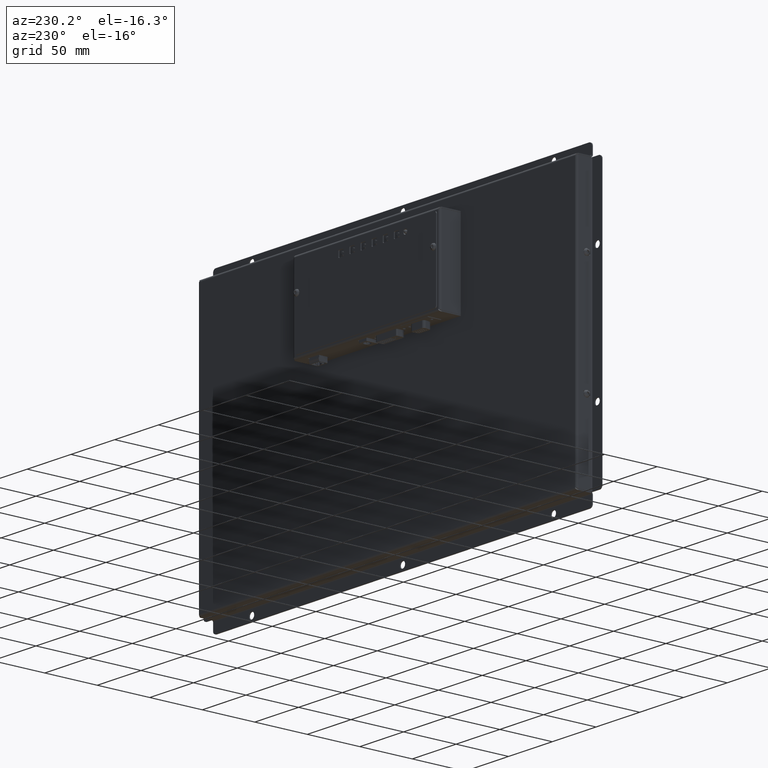
[diagram: clean part render]
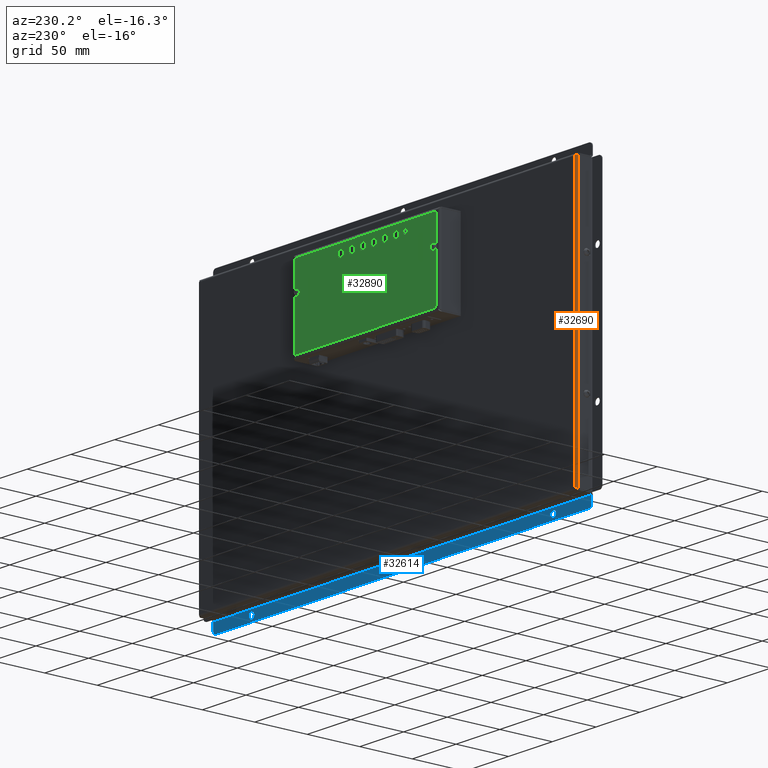
[diagram: same view with three faces highlighted in distinct colors, each labeled with its STEP entity id]
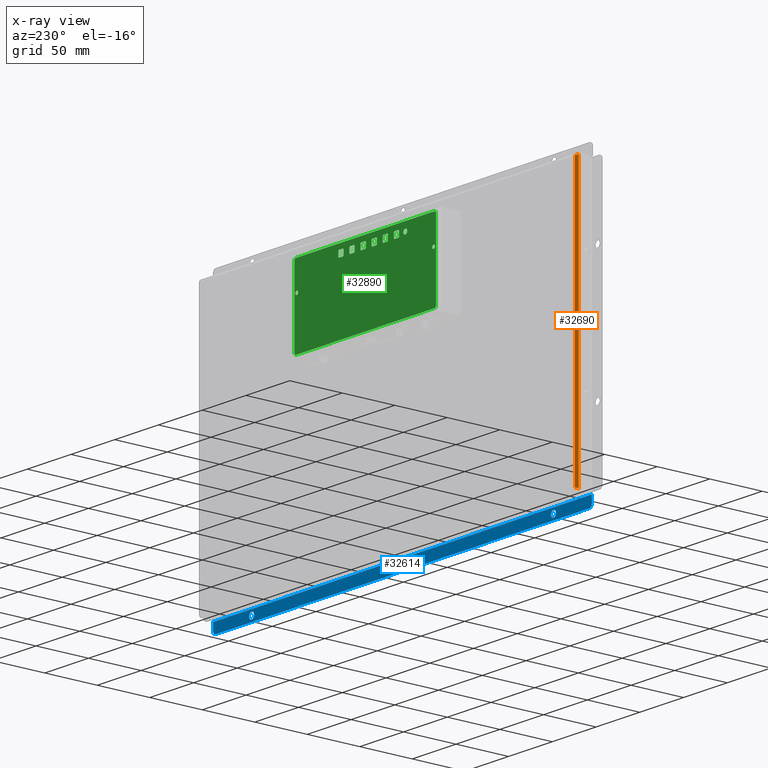
[diagram: x-ray of the same camera — body ghosted, the three highlighted faces saturated]
A machine part, auxiliary view with three faces highlighted in distinct colors.
The next image is the same camera in x-ray (body ghosted, the three faces saturated) — at least one of them is partly hidden behind the body in this view.
Their STEP definitions:

[orange] entity #32690 — the highlighted cylindrical surface (edge-blend (fillet) strip) has radius 2 mm, axis along (0, 0, 1).
#383=B_SPLINE_CURVE_WITH_KNOTS('',3,(#48125,#48126,#48127,#48128),
 .UNSPECIFIED.,.F.,.F.,(4,4),(-1.,-0.763258696678567),.UNSPECIFIED.);
#387=B_SPLINE_CURVE_WITH_KNOTS('',3,(#48224,#48225,#48226,#48227,#48228,
#48229,#48230),.UNSPECIFIED.,.F.,.F.,(4,3,4),(-0.763258696678567,-0.327110870012881,
0.),.UNSPECIFIED.);
#391=B_SPLINE_CURVE_WITH_KNOTS('',3,(#48285,#48286,#48287,#48288,#48289,
#48290,#48291),.UNSPECIFIED.,.F.,.F.,(4,3,4),(-0.763258696678557,-0.327110870012862,
0.),.UNSPECIFIED.);
#392=B_SPLINE_CURVE_WITH_KNOTS('',3,(#48335,#48336,#48337,#48338),
 .UNSPECIFIED.,.F.,.F.,(4,4),(-1.,-0.763258696678557),.UNSPECIFIED.);
#1092=CYLINDRICAL_SURFACE('',#35149,2.00000000000002);
#3060=FACE_OUTER_BOUND('',#4944,.T.);
#4944=EDGE_LOOP('',(#21790,#21791,#21792,#21793,#21794,#21795));
#7136=LINE('',#47946,#10232);
#7185=LINE('',#48526,#10281);
#10232=VECTOR('',#38757,10.);
#10281=VECTOR('',#38884,10.);
#13348=VERTEX_POINT('',#47943);
#13349=VERTEX_POINT('',#47945);
#13369=VERTEX_POINT('',#48025);
#13373=VERTEX_POINT('',#48108);
#13377=VERTEX_POINT('',#48233);
#13379=VERTEX_POINT('',#48271);
#16603=EDGE_CURVE('',#13348,#13349,#7136,.T.);
#16652=EDGE_CURVE('',#13349,#13373,#383,.T.);
#16659=EDGE_CURVE('',#13373,#13369,#387,.T.);
#16666=EDGE_CURVE('',#13379,#13377,#391,.T.);
#16669=EDGE_CURVE('',#13348,#13379,#392,.T.);
#16684=EDGE_CURVE('',#13369,#13377,#7185,.T.);
#21790=ORIENTED_EDGE('',*,*,#16603,.F.);
#21791=ORIENTED_EDGE('',*,*,#16669,.T.);
#21792=ORIENTED_EDGE('',*,*,#16666,.T.);
#21793=ORIENTED_EDGE('',*,*,#16684,.F.);
#21794=ORIENTED_EDGE('',*,*,#16659,.F.);
#21795=ORIENTED_EDGE('',*,*,#16652,.F.);
#32690=ADVANCED_FACE('',(#3060),#1092,.T.);
#35149=AXIS2_PLACEMENT_3D('',#48525,#38882,#38883);
#38757=DIRECTION('',(-1.24190424009659E-18,1.,6.69423997495131E-33));
#38882=DIRECTION('center_axis',(0.,-1.,0.));
#38883=DIRECTION('ref_axis',(0.,0.,-1.));
#38884=DIRECTION('',(0.,-1.,0.));
#47943=CARTESIAN_POINT('',(216.45,-127.45,1.99999999999999));
#47945=CARTESIAN_POINT('',(216.45,127.45,1.99999999999999));
#47946=CARTESIAN_POINT('',(216.45,4.99635134400043E-15,2.00000000000003));
#48025=CARTESIAN_POINT('',(214.45,126.55,-1.38777878078145E-16));
#48108=CARTESIAN_POINT('',(216.313297267953,127.236932826998,1.27327908298795));
#48125=CARTESIAN_POINT('Ctrl Pts',(216.45,127.45,1.99999999999998));
#48126=CARTESIAN_POINT('Ctrl Pts',(216.45,127.378977609005,1.75208508689468));
#48127=CARTESIAN_POINT('Ctrl Pts',(216.402177244262,127.30795521801,1.50393726846795));
#48128=CARTESIAN_POINT('Ctrl Pts',(216.312198719637,127.236932827013,1.27261268534075));
#48224=CARTESIAN_POINT('Ctrl Pts',(216.313297267955,127.236932827011,1.27327908298314));
#48225=CARTESIAN_POINT('Ctrl Pts',(216.147338578898,127.106088479012,0.8477644670254));
#48226=CARTESIAN_POINT('Ctrl Pts',(215.830183491866,126.975244131012,0.483087175164641));
#48227=CARTESIAN_POINT('Ctrl Pts',(215.433111320031,126.844399783011,0.258362880689913));
#48228=CARTESIAN_POINT('Ctrl Pts',(215.135307191142,126.746266522006,0.0898196598268512));
#48229=CARTESIAN_POINT('Ctrl Pts',(214.792549702048,126.648133261,-1.38745287476207E-14));
#48230=CARTESIAN_POINT('Ctrl Pts',(214.45,126.55,-1.77635683940025E-14));
#48233=CARTESIAN_POINT('',(214.45,-126.55,-1.38777878078145E-16));
#48271=CARTESIAN_POINT('',(216.313297267953,-127.236932826998,1.27327908298791));
#48285=CARTESIAN_POINT('Ctrl Pts',(216.313297267955,-127.236932827011,1.27327908298313));
#48286=CARTESIAN_POINT('Ctrl Pts',(216.147338578898,-127.106088479011,0.847764467025421));
#48287=CARTESIAN_POINT('Ctrl Pts',(215.830183491866,-126.975244131011,0.483087175164606));
#48288=CARTESIAN_POINT('Ctrl Pts',(215.433111320031,-126.844399783011,0.258362880689876));
#48289=CARTESIAN_POINT('Ctrl Pts',(215.135307191142,-126.746266522007,0.0898196598268266));
#48290=CARTESIAN_POINT('Ctrl Pts',(214.792549702048,-126.648133261003,-7.94498263796849E-15));
#48291=CARTESIAN_POINT('Ctrl Pts',(214.45,-126.55,-1.76247905159241E-14));
#48335=CARTESIAN_POINT('Ctrl Pts',(216.45,-127.45,1.99999999999999));
#48336=CARTESIAN_POINT('Ctrl Pts',(216.45,-127.378977609003,1.75208508689462));
#48337=CARTESIAN_POINT('Ctrl Pts',(216.402177244262,-127.307955218007,1.50393726846788));
#48338=CARTESIAN_POINT('Ctrl Pts',(216.312198719637,-127.236932827011,1.27261268534068));
#48525=CARTESIAN_POINT('Origin',(214.45,0.,2.));
#48526=CARTESIAN_POINT('',(214.45,63.2750000000001,0.));

[blue] entity #32614 — the highlighted planar face has unit normal (-0, 1, -0).
#727=FACE_BOUND('',#4841,.T.);
#728=FACE_BOUND('',#4842,.T.);
#729=FACE_BOUND('',#4843,.T.);
#1611=CIRCLE('',#35031,3.);
#1615=CIRCLE('',#35037,3.);
#1623=CIRCLE('',#35049,3.);
#1626=CIRCLE('',#35053,3.);
#1627=CIRCLE('',#35056,3.);
#2984=FACE_OUTER_BOUND('',#4840,.T.);
#4840=EDGE_LOOP('',(#21388,#21389,#21390,#21391,#21392,#21393));
#4841=EDGE_LOOP('',(#21394));
#4842=EDGE_LOOP('',(#21395));
#4843=EDGE_LOOP('',(#21396));
#7072=LINE('',#47771,#10168);
#7075=LINE('',#47777,#10171);
#7076=LINE('',#47779,#10172);
#7077=LINE('',#47781,#10173);
#10168=VECTOR('',#38581,10.);
#10171=VECTOR('',#38586,10.);
#10172=VECTOR('',#38587,10.);
#10173=VECTOR('',#38588,10.);
#13276=VERTEX_POINT('',#47719);
#13280=VERTEX_POINT('',#47731);
#13288=VERTEX_POINT('',#47755);
#13292=VERTEX_POINT('',#47764);
#13293=VERTEX_POINT('',#47766);
#13294=VERTEX_POINT('',#47770);
#13296=VERTEX_POINT('',#47776);
#13297=VERTEX_POINT('',#47778);
#13298=VERTEX_POINT('',#47780);
#16492=EDGE_CURVE('',#13276,#13276,#1611,.T.);
#16498=EDGE_CURVE('',#13280,#13280,#1615,.T.);
#16510=EDGE_CURVE('',#13288,#13288,#1623,.T.);
#16515=EDGE_CURVE('',#13292,#13293,#1626,.T.);
#16517=EDGE_CURVE('',#13294,#13293,#7072,.T.);
#16520=EDGE_CURVE('',#13296,#13292,#7075,.T.);
#16521=EDGE_CURVE('',#13296,#13297,#7076,.T.);
#16522=EDGE_CURVE('',#13297,#13298,#7077,.T.);
#16523=EDGE_CURVE('',#13294,#13298,#1627,.T.);
#21388=ORIENTED_EDGE('',*,*,#16515,.F.);
#21389=ORIENTED_EDGE('',*,*,#16520,.F.);
#21390=ORIENTED_EDGE('',*,*,#16521,.T.);
#21391=ORIENTED_EDGE('',*,*,#16522,.T.);
#21392=ORIENTED_EDGE('',*,*,#16523,.F.);
#21393=ORIENTED_EDGE('',*,*,#16517,.T.);
#21394=ORIENTED_EDGE('',*,*,#16492,.T.);
#21395=ORIENTED_EDGE('',*,*,#16498,.T.);
#21396=ORIENTED_EDGE('',*,*,#16510,.T.);
#30282=PLANE('',#35055);
#32614=ADVANCED_FACE('',(#2984,#727,#728,#729),#30282,.T.);
#35031=AXIS2_PLACEMENT_3D('',#47720,#38524,#38525);
#35037=AXIS2_PLACEMENT_3D('',#47732,#38538,#38539);
#35049=AXIS2_PLACEMENT_3D('',#47756,#38566,#38567);
#35053=AXIS2_PLACEMENT_3D('',#47767,#38576,#38577);
#35055=AXIS2_PLACEMENT_3D('',#47775,#38584,#38585);
#35056=AXIS2_PLACEMENT_3D('',#47782,#38589,#38590);
#38524=DIRECTION('center_axis',(-2.48075507837513E-16,1.41481229909159E-16,
1.));
#38525=DIRECTION('ref_axis',(1.,0.,1.34769822524749E-15));
#38538=DIRECTION('center_axis',(-2.48075507837513E-16,1.41481229909159E-16,
1.));
#38539=DIRECTION('ref_axis',(1.,0.,1.34769822524749E-15));
#38566=DIRECTION('center_axis',(-2.48075507837513E-16,1.41481229909159E-16,
1.));
#38567=DIRECTION('ref_axis',(1.,0.,1.34769822524749E-15));
#38576=DIRECTION('center_axis',(-2.48075507837513E-16,1.41481229909159E-16,
1.));
#38577=DIRECTION('ref_axis',(0.707106781186547,0.707106781186547,0.));
#38581=DIRECTION('',(1.,2.48075507837511E-16,2.48075507837513E-16));
#38584=DIRECTION('center_axis',(2.48075507837513E-16,-1.41481229909159E-16,
-1.));
#38585=DIRECTION('ref_axis',(-2.48075507837511E-16,1.,-1.41481229909159E-16));
#38586=DIRECTION('',(-1.59545183792622E-14,1.,-9.6733042133155E-16));
#38587=DIRECTION('',(-1.,-2.48075507837511E-16,-2.48075507837513E-16));
#38588=DIRECTION('',(-4.73674041221115E-14,1.,-9.67330421331558E-16));
#38589=DIRECTION('center_axis',(-2.48075507837513E-16,1.41481229909159E-16,
1.));
#38590=DIRECTION('ref_axis',(-0.707106781186552,0.707106781186543,0.));
#47719=CARTESIAN_POINT('',(-175.5,134.5,14.4999999999998));
#47720=CARTESIAN_POINT('Origin',(-172.5,134.5,14.4999999999998));
#47731=CARTESIAN_POINT('',(-3.00000000000006,134.5,14.5));
#47732=CARTESIAN_POINT('Origin',(-5.50687610540937E-14,134.5,14.5));
#47755=CARTESIAN_POINT('',(169.5,134.5,14.5000000000002));
#47756=CARTESIAN_POINT('Origin',(172.5,134.5,14.5000000000002));
#47764=CARTESIAN_POINT('',(216.45,136.5,14.5000000000001));
#47766=CARTESIAN_POINT('',(213.45,139.5,14.5000000000001));
#47767=CARTESIAN_POINT('Origin',(213.45,136.5,14.5000000000001));
#47770=CARTESIAN_POINT('',(-213.45,139.5,14.5));
#47771=CARTESIAN_POINT('',(-216.45,139.5,14.5));
#47775=CARTESIAN_POINT('Origin',(2.3555337563145E-13,133.394026644708,14.5));
#47776=CARTESIAN_POINT('',(216.45,129.55,14.5000000000001));
#47777=CARTESIAN_POINT('',(216.45,127.288053289415,14.5000000000001));
#47778=CARTESIAN_POINT('',(-216.45,129.55,14.5));
#47779=CARTESIAN_POINT('',(2.24710864856835E-13,129.55,14.5));
#47780=CARTESIAN_POINT('',(-216.45,136.5,14.5));
#47781=CARTESIAN_POINT('',(-216.45,127.288053289415,14.5));
#47782=CARTESIAN_POINT('Origin',(-213.45,136.5,14.5));

[green] entity #32890 — the highlighted planar face has unit normal (0, 1, -0).
#814=FACE_BOUND('',#5204,.T.);
#815=FACE_BOUND('',#5205,.T.);
#816=FACE_BOUND('',#5206,.T.);
#817=FACE_BOUND('',#5207,.T.);
#818=FACE_BOUND('',#5208,.T.);
#819=FACE_BOUND('',#5209,.T.);
#820=FACE_BOUND('',#5210,.T.);
#821=FACE_BOUND('',#5211,.T.);
#822=FACE_BOUND('',#5212,.T.);
#1764=CIRCLE('',#35387,1.);
#1766=CIRCLE('',#35391,1.);
#1768=CIRCLE('',#35395,1.);
#1770=CIRCLE('',#35399,1.);
#1772=CIRCLE('',#35403,1.);
#1774=CIRCLE('',#35407,1.);
#1776=CIRCLE('',#35411,1.);
#1778=CIRCLE('',#35415,1.);
#1780=CIRCLE('',#35419,1.);
#1782=CIRCLE('',#35423,1.);
#1784=CIRCLE('',#35427,1.);
#1786=CIRCLE('',#35431,1.);
#1788=CIRCLE('',#35435,1.);
#1790=CIRCLE('',#35439,1.);
#1792=CIRCLE('',#35443,1.);
#1794=CIRCLE('',#35447,1.);
#1796=CIRCLE('',#35451,1.);
#1798=CIRCLE('',#35455,1.);
#1800=CIRCLE('',#35459,1.);
#1802=CIRCLE('',#35463,1.);
#1804=CIRCLE('',#35467,1.);
#1806=CIRCLE('',#35471,1.);
#1808=CIRCLE('',#35475,1.);
#1810=CIRCLE('',#35479,1.);
#1812=CIRCLE('',#35483,2.25);
#1814=CIRCLE('',#35486,2.);
#1821=CIRCLE('',#35496,2.);
#1822=CIRCLE('',#35499,2.);
#1823=CIRCLE('',#35502,2.);
#1824=CIRCLE('',#35504,1.6);
#1825=CIRCLE('',#35506,1.6);
#3260=FACE_OUTER_BOUND('',#5203,.T.);
#5203=EDGE_LOOP('',(#22946,#22947,#22948,#22949,#22950,#22951,#22952,#22953));
#5204=EDGE_LOOP('',(#22954,#22955,#22956,#22957,#22958,#22959,#22960,#22961));
#5205=EDGE_LOOP('',(#22962,#22963,#22964,#22965,#22966,#22967,#22968,#22969));
#5206=EDGE_LOOP('',(#22970,#22971,#22972,#22973,#22974,#22975,#22976,#22977));
#5207=EDGE_LOOP('',(#22978));
#5208=EDGE_LOOP('',(#22979,#22980,#22981,#22982,#22983,#22984,#22985,#22986));
#5209=EDGE_LOOP('',(#22987,#22988,#22989,#22990,#22991,#22992,#22993,#22994));
#5210=EDGE_LOOP('',(#22995,#22996,#22997,#22998,#22999,#23000,#23001,#23002));
#5211=EDGE_LOOP('',(#23003));
#5212=EDGE_LOOP('',(#23004));
#7429=LINE('',#49770,#10525);
#7435=LINE('',#49785,#10531);
#7437=LINE('',#49794,#10533);
#7442=LINE('',#49806,#10538);
#7445=LINE('',#49818,#10541);
#7451=LINE('',#49833,#10547);
#7453=LINE('',#49842,#10549);
#7458=LINE('',#49854,#10554);
#7461=LINE('',#49866,#10557);
#7467=LINE('',#49881,#10563);
#7469=LINE('',#49890,#10565);
#7474=LINE('',#49902,#10570);
#7477=LINE('',#49914,#10573);
#7483=LINE('',#49929,#10579);
#7485=LINE('',#49938,#10581);
#7490=LINE('',#49950,#10586);
#7493=LINE('',#49962,#10589);
#7499=LINE('',#49977,#10595);
#7501=LINE('',#49986,#10597);
#7506=LINE('',#49998,#10602);
#7509=LINE('',#50010,#10605);
#7515=LINE('',#50025,#10611);
#7517=LINE('',#50034,#10613);
#7522=LINE('',#50046,#10618);
#7528=LINE('',#50067,#10624);
#7534=LINE('',#50091,#10630);
#7537=LINE('',#50099,#10633);
#7541=LINE('',#50113,#10637);
#10525=VECTOR('',#39608,10.);
#10531=VECTOR('',#39622,10.);
#10533=VECTOR('',#39632,10.);
#10538=VECTOR('',#39645,10.);
#10541=VECTOR('',#39656,10.);
#10547=VECTOR('',#39670,10.);
#10549=VECTOR('',#39680,10.);
#10554=VECTOR('',#39693,10.);
#10557=VECTOR('',#39704,10.);
#10563=VECTOR('',#39718,10.);
#10565=VECTOR('',#39728,10.);
#10570=VECTOR('',#39741,10.);
#10573=VECTOR('',#39752,10.);
#10579=VECTOR('',#39766,10.);
#10581=VECTOR('',#39776,10.);
#10586=VECTOR('',#39789,10.);
#10589=VECTOR('',#39800,10.);
#10595=VECTOR('',#39814,10.);
#10597=VECTOR('',#39824,10.);
#10602=VECTOR('',#39837,10.);
#10605=VECTOR('',#39848,10.);
#10611=VECTOR('',#39862,10.);
#10613=VECTOR('',#39872,10.);
#10618=VECTOR('',#39885,10.);
#10624=VECTOR('',#39905,10.);
#10630=VECTOR('',#39929,10.);
#10633=VECTOR('',#39938,10.);
#10637=VECTOR('',#39956,10.);
#13629=VERTEX_POINT('',#49760);
#13630=VERTEX_POINT('',#49761);
#13633=VERTEX_POINT('',#49769);
#13635=VERTEX_POINT('',#49775);
#13636=VERTEX_POINT('',#49776);
#13639=VERTEX_POINT('',#49787);
#13641=VERTEX_POINT('',#49793);
#13643=VERTEX_POINT('',#49799);
#13645=VERTEX_POINT('',#49808);
#13646=VERTEX_POINT('',#49809);
#13649=VERTEX_POINT('',#49817);
#13651=VERTEX_POINT('',#49823);
#13652=VERTEX_POINT('',#49824);
#13655=VERTEX_POINT('',#49835);
#13657=VERTEX_POINT('',#49841);
#13659=VERTEX_POINT('',#49847);
#13661=VERTEX_POINT('',#49856);
#13662=VERTEX_POINT('',#49857);
#13665=VERTEX_POINT('',#49865);
#13667=VERTEX_POINT('',#49871);
#13668=VERTEX_POINT('',#49872);
#13671=VERTEX_POINT('',#49883);
#13673=VERTEX_POINT('',#49889);
#13675=VERTEX_POINT('',#49895);
#13677=VERTEX_POINT('',#49904);
#13678=VERTEX_POINT('',#49905);
#13681=VERTEX_POINT('',#49913);
#13683=VERTEX_POINT('',#49919);
#13684=VERTEX_POINT('',#49920);
#13687=VERTEX_POINT('',#49931);
#13689=VERTEX_POINT('',#49937);
#13691=VERTEX_POINT('',#49943);
#13693=VERTEX_POINT('',#49952);
#13694=VERTEX_POINT('',#49953);
#13697=VERTEX_POINT('',#49961);
#13699=VERTEX_POINT('',#49967);
#13700=VERTEX_POINT('',#49968);
#13703=VERTEX_POINT('',#49979);
#13705=VERTEX_POINT('',#49985);
#13707=VERTEX_POINT('',#49991);
#13709=VERTEX_POINT('',#50000);
#13710=VERTEX_POINT('',#50001);
#13713=VERTEX_POINT('',#50009);
#13715=VERTEX_POINT('',#50015);
#13716=VERTEX_POINT('',#50016);
#13719=VERTEX_POINT('',#50027);
#13721=VERTEX_POINT('',#50033);
#13723=VERTEX_POINT('',#50039);
#13725=VERTEX_POINT('',#50048);
#13727=VERTEX_POINT('',#50054);
#13728=VERTEX_POINT('',#50055);
#13732=VERTEX_POINT('',#50065);
#13740=VERTEX_POINT('',#50085);
#13741=VERTEX_POINT('',#50089);
#13742=VERTEX_POINT('',#50093);
#13743=VERTEX_POINT('',#50097);
#13744=VERTEX_POINT('',#50101);
#13745=VERTEX_POINT('',#50105);
#13746=VERTEX_POINT('',#50109);
#17064=EDGE_CURVE('',#13629,#13630,#1764,.T.);
#17068=EDGE_CURVE('',#13633,#13630,#7429,.T.);
#17071=EDGE_CURVE('',#13635,#13636,#1766,.T.);
#17076=EDGE_CURVE('',#13629,#13636,#7435,.T.);
#17077=EDGE_CURVE('',#13633,#13639,#1768,.T.);
#17080=EDGE_CURVE('',#13641,#13639,#7437,.T.);
#17083=EDGE_CURVE('',#13641,#13643,#1770,.T.);
#17087=EDGE_CURVE('',#13635,#13643,#7442,.T.);
#17088=EDGE_CURVE('',#13645,#13646,#1772,.T.);
#17092=EDGE_CURVE('',#13649,#13646,#7445,.T.);
#17095=EDGE_CURVE('',#13651,#13652,#1774,.T.);
#17100=EDGE_CURVE('',#13645,#13652,#7451,.T.);
#17101=EDGE_CURVE('',#13649,#13655,#1776,.T.);
#17104=EDGE_CURVE('',#13657,#13655,#7453,.T.);
#17107=EDGE_CURVE('',#13657,#13659,#1778,.T.);
#17111=EDGE_CURVE('',#13651,#13659,#7458,.T.);
#17112=EDGE_CURVE('',#13661,#13662,#1780,.T.);
#17116=EDGE_CURVE('',#13665,#13662,#7461,.T.);
#17119=EDGE_CURVE('',#13667,#13668,#1782,.T.);
#17124=EDGE_CURVE('',#13661,#13668,#7467,.T.);
#17125=EDGE_CURVE('',#13665,#13671,#1784,.T.);
#17128=EDGE_CURVE('',#13673,#13671,#7469,.T.);
#17131=EDGE_CURVE('',#13673,#13675,#1786,.T.);
#17135=EDGE_CURVE('',#13667,#13675,#7474,.T.);
#17136=EDGE_CURVE('',#13677,#13678,#1788,.T.);
#17140=EDGE_CURVE('',#13681,#13678,#7477,.T.);
#17143=EDGE_CURVE('',#13683,#13684,#1790,.T.);
#17148=EDGE_CURVE('',#13677,#13684,#7483,.T.);
#17149=EDGE_CURVE('',#13681,#13687,#1792,.T.);
#17152=EDGE_CURVE('',#13689,#13687,#7485,.T.);
#17155=EDGE_CURVE('',#13689,#13691,#1794,.T.);
#17159=EDGE_CURVE('',#13683,#13691,#7490,.T.);
#17160=EDGE_CURVE('',#13693,#13694,#1796,.T.);
#17164=EDGE_CURVE('',#13697,#13694,#7493,.T.);
#17167=EDGE_CURVE('',#13699,#13700,#1798,.T.);
#17172=EDGE_CURVE('',#13693,#13700,#7499,.T.);
#17173=EDGE_CURVE('',#13697,#13703,#1800,.T.);
#17176=EDGE_CURVE('',#13705,#13703,#7501,.T.);
#17179=EDGE_CURVE('',#13705,#13707,#1802,.T.);
#17183=EDGE_CURVE('',#13699,#13707,#7506,.T.);
#17184=EDGE_CURVE('',#13709,#13710,#1804,.T.);
#17188=EDGE_CURVE('',#13713,#13710,#7509,.T.);
#17191=EDGE_CURVE('',#13715,#13716,#1806,.T.);
#17196=EDGE_CURVE('',#13709,#13716,#7515,.T.);
#17197=EDGE_CURVE('',#13713,#13719,#1808,.T.);
#17200=EDGE_CURVE('',#13721,#13719,#7517,.T.);
#17203=EDGE_CURVE('',#13721,#13723,#1810,.T.);
#17207=EDGE_CURVE('',#13715,#13723,#7522,.T.);
#17208=EDGE_CURVE('',#13725,#13725,#1812,.T.);
#17211=EDGE_CURVE('',#13727,#13728,#1814,.T.);
#17217=EDGE_CURVE('',#13732,#13727,#7528,.T.);
#17226=EDGE_CURVE('',#13740,#13732,#1821,.T.);
#17229=EDGE_CURVE('',#13741,#13740,#7534,.T.);
#17230=EDGE_CURVE('',#13742,#13741,#1822,.T.);
#17233=EDGE_CURVE('',#13743,#13742,#7537,.T.);
#17234=EDGE_CURVE('',#13744,#13743,#1823,.T.);
#17237=EDGE_CURVE('',#13745,#13745,#1824,.T.);
#17239=EDGE_CURVE('',#13746,#13746,#1825,.T.);
#17240=EDGE_CURVE('',#13728,#13744,#7541,.T.);
#22946=ORIENTED_EDGE('',*,*,#17211,.F.);
#22947=ORIENTED_EDGE('',*,*,#17217,.F.);
#22948=ORIENTED_EDGE('',*,*,#17226,.F.);
#22949=ORIENTED_EDGE('',*,*,#17229,.F.);
#22950=ORIENTED_EDGE('',*,*,#17230,.F.);
#22951=ORIENTED_EDGE('',*,*,#17233,.F.);
#22952=ORIENTED_EDGE('',*,*,#17234,.F.);
#22953=ORIENTED_EDGE('',*,*,#17240,.F.);
#22954=ORIENTED_EDGE('',*,*,#17200,.T.);
#22955=ORIENTED_EDGE('',*,*,#17197,.F.);
#22956=ORIENTED_EDGE('',*,*,#17188,.T.);
#22957=ORIENTED_EDGE('',*,*,#17184,.F.);
#22958=ORIENTED_EDGE('',*,*,#17196,.T.);
#22959=ORIENTED_EDGE('',*,*,#17191,.F.);
#22960=ORIENTED_EDGE('',*,*,#17207,.T.);
#22961=ORIENTED_EDGE('',*,*,#17203,.F.);
#22962=ORIENTED_EDGE('',*,*,#17176,.T.);
#22963=ORIENTED_EDGE('',*,*,#17173,.F.);
#22964=ORIENTED_EDGE('',*,*,#17164,.T.);
#22965=ORIENTED_EDGE('',*,*,#17160,.F.);
#22966=ORIENTED_EDGE('',*,*,#17172,.T.);
#22967=ORIENTED_EDGE('',*,*,#17167,.F.);
#22968=ORIENTED_EDGE('',*,*,#17183,.T.);
#22969=ORIENTED_EDGE('',*,*,#17179,.F.);
#22970=ORIENTED_EDGE('',*,*,#17152,.T.);
#22971=ORIENTED_EDGE('',*,*,#17149,.F.);
#22972=ORIENTED_EDGE('',*,*,#17140,.T.);
#22973=ORIENTED_EDGE('',*,*,#17136,.F.);
#22974=ORIENTED_EDGE('',*,*,#17148,.T.);
#22975=ORIENTED_EDGE('',*,*,#17143,.F.);
#22976=ORIENTED_EDGE('',*,*,#17159,.T.);
#22977=ORIENTED_EDGE('',*,*,#17155,.F.);
#22978=ORIENTED_EDGE('',*,*,#17208,.T.);
#22979=ORIENTED_EDGE('',*,*,#17128,.T.);
#22980=ORIENTED_EDGE('',*,*,#17125,.F.);
#22981=ORIENTED_EDGE('',*,*,#17116,.T.);
#22982=ORIENTED_EDGE('',*,*,#17112,.F.);
#22983=ORIENTED_EDGE('',*,*,#17124,.T.);
#22984=ORIENTED_EDGE('',*,*,#17119,.F.);
#22985=ORIENTED_EDGE('',*,*,#17135,.T.);
#22986=ORIENTED_EDGE('',*,*,#17131,.F.);
#22987=ORIENTED_EDGE('',*,*,#17104,.T.);
#22988=ORIENTED_EDGE('',*,*,#17101,.F.);
#22989=ORIENTED_EDGE('',*,*,#17092,.T.);
#22990=ORIENTED_EDGE('',*,*,#17088,.F.);
#22991=ORIENTED_EDGE('',*,*,#17100,.T.);
#22992=ORIENTED_EDGE('',*,*,#17095,.F.);
#22993=ORIENTED_EDGE('',*,*,#17111,.T.);
#22994=ORIENTED_EDGE('',*,*,#17107,.F.);
#22995=ORIENTED_EDGE('',*,*,#17080,.T.);
#22996=ORIENTED_EDGE('',*,*,#17077,.F.);
#22997=ORIENTED_EDGE('',*,*,#17068,.T.);
#22998=ORIENTED_EDGE('',*,*,#17064,.F.);
#22999=ORIENTED_EDGE('',*,*,#17076,.T.);
#23000=ORIENTED_EDGE('',*,*,#17071,.F.);
#23001=ORIENTED_EDGE('',*,*,#17087,.T.);
#23002=ORIENTED_EDGE('',*,*,#17083,.F.);
#23003=ORIENTED_EDGE('',*,*,#17237,.T.);
#23004=ORIENTED_EDGE('',*,*,#17239,.T.);
#30429=PLANE('',#35508);
#32890=ADVANCED_FACE('',(#3260,#814,#815,#816,#817,#818,#819,#820,#821,
#822),#30429,.T.);
#35387=AXIS2_PLACEMENT_3D('',#49762,#39600,#39601);
#35391=AXIS2_PLACEMENT_3D('',#49777,#39613,#39614);
#35395=AXIS2_PLACEMENT_3D('',#49788,#39625,#39626);
#35399=AXIS2_PLACEMENT_3D('',#49800,#39637,#39638);
#35403=AXIS2_PLACEMENT_3D('',#49810,#39648,#39649);
#35407=AXIS2_PLACEMENT_3D('',#49825,#39661,#39662);
#35411=AXIS2_PLACEMENT_3D('',#49836,#39673,#39674);
#35415=AXIS2_PLACEMENT_3D('',#49848,#39685,#39686);
#35419=AXIS2_PLACEMENT_3D('',#49858,#39696,#39697);
#35423=AXIS2_PLACEMENT_3D('',#49873,#39709,#39710);
#35427=AXIS2_PLACEMENT_3D('',#49884,#39721,#39722);
#35431=AXIS2_PLACEMENT_3D('',#49896,#39733,#39734);
#35435=AXIS2_PLACEMENT_3D('',#49906,#39744,#39745);
#35439=AXIS2_PLACEMENT_3D('',#49921,#39757,#39758);
#35443=AXIS2_PLACEMENT_3D('',#49932,#39769,#39770);
#35447=AXIS2_PLACEMENT_3D('',#49944,#39781,#39782);
#35451=AXIS2_PLACEMENT_3D('',#49954,#39792,#39793);
#35455=AXIS2_PLACEMENT_3D('',#49969,#39805,#39806);
#35459=AXIS2_PLACEMENT_3D('',#49980,#39817,#39818);
#35463=AXIS2_PLACEMENT_3D('',#49992,#39829,#39830);
#35467=AXIS2_PLACEMENT_3D('',#50002,#39840,#39841);
#35471=AXIS2_PLACEMENT_3D('',#50017,#39853,#39854);
#35475=AXIS2_PLACEMENT_3D('',#50028,#39865,#39866);
#35479=AXIS2_PLACEMENT_3D('',#50040,#39877,#39878);
#35483=AXIS2_PLACEMENT_3D('',#50049,#39888,#39889);
#35486=AXIS2_PLACEMENT_3D('',#50056,#39895,#39896);
#35496=AXIS2_PLACEMENT_3D('',#50086,#39923,#39924);
#35499=AXIS2_PLACEMENT_3D('',#50094,#39932,#39933);
#35502=AXIS2_PLACEMENT_3D('',#50102,#39941,#39942);
#35504=AXIS2_PLACEMENT_3D('',#50107,#39947,#39948);
#35506=AXIS2_PLACEMENT_3D('',#50111,#39952,#39953);
#35508=AXIS2_PLACEMENT_3D('',#50114,#39957,#39958);
#39600=DIRECTION('center_axis',(0.,0.,1.));
#39601=DIRECTION('ref_axis',(-0.707106781186551,-0.707106781186544,0.));
#39608=DIRECTION('',(-1.,0.,0.));
#39613=DIRECTION('center_axis',(0.,0.,1.));
#39614=DIRECTION('ref_axis',(-0.707106781186548,0.707106781186548,0.));
#39622=DIRECTION('',(0.,1.,0.));
#39625=DIRECTION('center_axis',(0.,0.,1.));
#39626=DIRECTION('ref_axis',(0.707106781186548,-0.707106781186548,0.));
#39632=DIRECTION('',(0.,-1.,0.));
#39637=DIRECTION('center_axis',(0.,0.,1.));
#39638=DIRECTION('ref_axis',(0.707106781186544,0.707106781186551,0.));
#39645=DIRECTION('',(1.,0.,0.));
#39648=DIRECTION('center_axis',(0.,0.,1.));
#39649=DIRECTION('ref_axis',(-0.707106781186549,-0.707106781186546,0.));
#39656=DIRECTION('',(-1.,0.,0.));
#39661=DIRECTION('center_axis',(0.,0.,1.));
#39662=DIRECTION('ref_axis',(-0.707106781186545,0.70710678118655,0.));
#39670=DIRECTION('',(0.,1.,0.));
#39673=DIRECTION('center_axis',(0.,0.,1.));
#39674=DIRECTION('ref_axis',(0.707106781186549,-0.707106781186546,0.));
#39680=DIRECTION('',(0.,-1.,0.));
#39685=DIRECTION('center_axis',(0.,0.,1.));
#39686=DIRECTION('ref_axis',(0.707106781186546,0.707106781186549,0.));
#39693=DIRECTION('',(1.,0.,0.));
#39696=DIRECTION('center_axis',(0.,0.,1.));
#39697=DIRECTION('ref_axis',(-0.707106781186549,-0.707106781186546,0.));
#39704=DIRECTION('',(-1.,0.,0.));
#39709=DIRECTION('center_axis',(0.,0.,1.));
#39710=DIRECTION('ref_axis',(-0.707106781186546,0.707106781186549,0.));
#39718=DIRECTION('',(0.,1.,0.));
#39721=DIRECTION('center_axis',(0.,0.,1.));
#39722=DIRECTION('ref_axis',(0.707106781186549,-0.707106781186546,0.));
#39728=DIRECTION('',(0.,-1.,0.));
#39733=DIRECTION('center_axis',(0.,0.,1.));
#39734=DIRECTION('ref_axis',(0.707106781186546,0.707106781186549,0.));
#39741=DIRECTION('',(1.,0.,0.));
#39744=DIRECTION('center_axis',(0.,0.,1.));
#39745=DIRECTION('ref_axis',(-0.707106781186548,-0.707106781186548,0.));
#39752=DIRECTION('',(-1.,0.,0.));
#39757=DIRECTION('center_axis',(0.,0.,1.));
#39758=DIRECTION('ref_axis',(-0.707106781186544,0.707106781186551,0.));
#39766=DIRECTION('',(0.,1.,0.));
#39769=DIRECTION('center_axis',(0.,0.,1.));
#39770=DIRECTION('ref_axis',(0.707106781186551,-0.707106781186544,0.));
#39776=DIRECTION('',(0.,-1.,0.));
#39781=DIRECTION('center_axis',(0.,0.,1.));
#39782=DIRECTION('ref_axis',(0.707106781186548,0.707106781186548,0.));
#39789=DIRECTION('',(1.,0.,0.));
#39792=DIRECTION('center_axis',(0.,0.,1.));
#39793=DIRECTION('ref_axis',(-0.707106781186548,-0.707106781186547,0.));
#39800=DIRECTION('',(-1.,0.,0.));
#39805=DIRECTION('center_axis',(0.,0.,1.));
#39806=DIRECTION('ref_axis',(-0.707106781186545,0.70710678118655,0.));
#39814=DIRECTION('',(0.,1.,0.));
#39817=DIRECTION('center_axis',(0.,0.,1.));
#39818=DIRECTION('ref_axis',(0.707106781186549,-0.707106781186546,0.));
#39824=DIRECTION('',(0.,-1.,0.));
#39829=DIRECTION('center_axis',(0.,0.,1.));
#39830=DIRECTION('ref_axis',(0.707106781186546,0.707106781186549,0.));
#39837=DIRECTION('',(1.,0.,0.));
#39840=DIRECTION('center_axis',(0.,0.,1.));
#39841=DIRECTION('ref_axis',(-0.707106781186549,-0.707106781186546,0.));
#39848=DIRECTION('',(-1.,0.,0.));
#39853=DIRECTION('center_axis',(0.,0.,1.));
#39854=DIRECTION('ref_axis',(-0.707106781186546,0.707106781186549,0.));
#39862=DIRECTION('',(0.,1.,0.));
#39865=DIRECTION('center_axis',(0.,0.,1.));
#39866=DIRECTION('ref_axis',(0.707106781186551,-0.707106781186544,0.));
#39872=DIRECTION('',(0.,-1.,0.));
#39877=DIRECTION('center_axis',(0.,0.,1.));
#39878=DIRECTION('ref_axis',(0.707106781186548,0.707106781186548,0.));
#39885=DIRECTION('',(1.,0.,0.));
#39888=DIRECTION('center_axis',(0.,0.,-1.));
#39889=DIRECTION('ref_axis',(-1.,0.,0.));
#39895=DIRECTION('center_axis',(0.,0.,-1.));
#39896=DIRECTION('ref_axis',(0.707106781186548,-0.707106781186548,0.));
#39905=DIRECTION('',(-3.00060276925719E-15,-1.,0.));
#39923=DIRECTION('center_axis',(0.,0.,-1.));
#39924=DIRECTION('ref_axis',(0.707106781186548,0.707106781186548,0.));
#39929=DIRECTION('',(1.,0.,0.));
#39932=DIRECTION('center_axis',(0.,0.,-1.));
#39933=DIRECTION('ref_axis',(-0.707106781186546,0.707106781186549,0.));
#39938=DIRECTION('',(9.601928861623E-16,1.,0.));
#39941=DIRECTION('center_axis',(0.,0.,-1.));
#39942=DIRECTION('ref_axis',(-0.707106781186546,-0.707106781186549,0.));
#39947=DIRECTION('center_axis',(0.,0.,-1.));
#39948=DIRECTION('ref_axis',(-1.,0.,0.));
#39952=DIRECTION('center_axis',(0.,0.,-1.));
#39953=DIRECTION('ref_axis',(-1.,0.,0.));
#39956=DIRECTION('',(-1.,-4.66019541200685E-16,0.));
#39957=DIRECTION('center_axis',(0.,0.,1.));
#39958=DIRECTION('ref_axis',(1.,0.,0.));
#49760=CARTESIAN_POINT('',(31.3,29.9999999999994,1.));
#49761=CARTESIAN_POINT('',(32.3,28.9999999999994,1.));
#49762=CARTESIAN_POINT('Origin',(32.3,29.9999999999994,1.));
#49769=CARTESIAN_POINT('',(36.3,28.9999999999994,1.));
#49770=CARTESIAN_POINT('',(17.9000000000001,28.9999999999994,1.));
#49775=CARTESIAN_POINT('',(32.3,34.9999999999994,1.));
#49776=CARTESIAN_POINT('',(31.3,33.9999999999994,1.));
#49777=CARTESIAN_POINT('Origin',(32.3,33.9999999999994,1.));
#49785=CARTESIAN_POINT('',(31.3,15.9999999999995,1.));
#49787=CARTESIAN_POINT('',(37.3,29.9999999999994,1.));
#49788=CARTESIAN_POINT('Origin',(36.3,29.9999999999994,1.));
#49793=CARTESIAN_POINT('',(37.3,33.9999999999994,1.));
#49794=CARTESIAN_POINT('',(37.3,18.9999999999995,1.));
#49799=CARTESIAN_POINT('',(36.3,34.9999999999994,1.));
#49800=CARTESIAN_POINT('Origin',(36.3,33.9999999999994,1.));
#49806=CARTESIAN_POINT('',(14.9000000000001,34.9999999999994,1.));
#49808=CARTESIAN_POINT('',(5.90000000000003,29.9999999999995,1.));
#49809=CARTESIAN_POINT('',(6.90000000000003,28.9999999999995,1.));
#49810=CARTESIAN_POINT('Origin',(6.90000000000003,29.9999999999995,1.));
#49817=CARTESIAN_POINT('',(10.9,28.9999999999995,1.));
#49818=CARTESIAN_POINT('',(5.20000000000014,28.9999999999995,1.));
#49823=CARTESIAN_POINT('',(6.90000000000003,34.9999999999995,1.));
#49824=CARTESIAN_POINT('',(5.90000000000003,33.9999999999995,1.));
#49825=CARTESIAN_POINT('Origin',(6.90000000000003,33.9999999999995,1.));
#49833=CARTESIAN_POINT('',(5.90000000000003,15.9999999999996,1.));
#49835=CARTESIAN_POINT('',(11.9,29.9999999999995,1.));
#49836=CARTESIAN_POINT('Origin',(10.9,29.9999999999995,1.));
#49841=CARTESIAN_POINT('',(11.9,33.9999999999995,1.));
#49842=CARTESIAN_POINT('',(11.9,18.9999999999996,1.));
#49847=CARTESIAN_POINT('',(10.9,34.9999999999995,1.));
#49848=CARTESIAN_POINT('Origin',(10.9,33.9999999999995,1.));
#49854=CARTESIAN_POINT('',(2.20000000000014,34.9999999999995,1.));
#49856=CARTESIAN_POINT('',(-19.5,29.9999999999995,1.));
#49857=CARTESIAN_POINT('',(-18.5,28.9999999999995,1.));
#49858=CARTESIAN_POINT('Origin',(-18.5,29.9999999999995,1.));
#49865=CARTESIAN_POINT('',(-14.5,28.9999999999995,1.));
#49866=CARTESIAN_POINT('',(-7.49999999999986,28.9999999999995,1.));
#49871=CARTESIAN_POINT('',(-18.5,34.9999999999995,1.));
#49872=CARTESIAN_POINT('',(-19.5,33.9999999999995,1.));
#49873=CARTESIAN_POINT('Origin',(-18.5,33.9999999999995,1.));
#49881=CARTESIAN_POINT('',(-19.5,15.9999999999996,1.));
#49883=CARTESIAN_POINT('',(-13.5,29.9999999999995,1.));
#49884=CARTESIAN_POINT('Origin',(-14.5,29.9999999999995,1.));
#49889=CARTESIAN_POINT('',(-13.5,33.9999999999995,1.));
#49890=CARTESIAN_POINT('',(-13.5,18.9999999999996,1.));
#49895=CARTESIAN_POINT('',(-14.5,34.9999999999995,1.));
#49896=CARTESIAN_POINT('Origin',(-14.5,33.9999999999995,1.));
#49902=CARTESIAN_POINT('',(-10.4999999999999,34.9999999999995,1.));
#49904=CARTESIAN_POINT('',(-32.2,29.9999999999996,1.));
#49905=CARTESIAN_POINT('',(-31.2,28.9999999999996,1.));
#49906=CARTESIAN_POINT('Origin',(-31.2,29.9999999999996,1.));
#49913=CARTESIAN_POINT('',(-27.2,28.9999999999996,1.));
#49914=CARTESIAN_POINT('',(-13.8499999999999,28.9999999999996,1.));
#49919=CARTESIAN_POINT('',(-31.2,34.9999999999996,1.));
#49920=CARTESIAN_POINT('',(-32.2,33.9999999999996,1.));
#49921=CARTESIAN_POINT('Origin',(-31.2,33.9999999999996,1.));
#49929=CARTESIAN_POINT('',(-32.2,15.9999999999996,1.));
#49931=CARTESIAN_POINT('',(-26.2,29.9999999999996,1.));
#49932=CARTESIAN_POINT('Origin',(-27.2,29.9999999999996,1.));
#49937=CARTESIAN_POINT('',(-26.2,33.9999999999996,1.));
#49938=CARTESIAN_POINT('',(-26.2,18.9999999999996,1.));
#49943=CARTESIAN_POINT('',(-27.2,34.9999999999996,1.));
#49944=CARTESIAN_POINT('Origin',(-27.2,33.9999999999996,1.));
#49950=CARTESIAN_POINT('',(-16.8499999999999,34.9999999999996,1.));
#49952=CARTESIAN_POINT('',(-6.79999999999997,29.9999999999995,1.));
#49953=CARTESIAN_POINT('',(-5.79999999999997,28.9999999999995,1.));
#49954=CARTESIAN_POINT('Origin',(-5.79999999999997,29.9999999999995,1.));
#49961=CARTESIAN_POINT('',(-1.79999999999997,28.9999999999995,1.));
#49962=CARTESIAN_POINT('',(-1.14999999999986,28.9999999999995,1.));
#49967=CARTESIAN_POINT('',(-5.79999999999997,34.9999999999995,1.));
#49968=CARTESIAN_POINT('',(-6.79999999999997,33.9999999999995,1.));
#49969=CARTESIAN_POINT('Origin',(-5.79999999999997,33.9999999999995,1.));
#49977=CARTESIAN_POINT('',(-6.79999999999997,15.9999999999996,1.));
#49979=CARTESIAN_POINT('',(-0.799999999999974,29.9999999999995,1.));
#49980=CARTESIAN_POINT('Origin',(-1.79999999999997,29.9999999999995,1.));
#49985=CARTESIAN_POINT('',(-0.799999999999974,33.9999999999995,1.));
#49986=CARTESIAN_POINT('',(-0.799999999999974,18.9999999999996,1.));
#49991=CARTESIAN_POINT('',(-1.79999999999997,34.9999999999995,1.));
#49992=CARTESIAN_POINT('Origin',(-1.79999999999997,33.9999999999995,1.));
#49998=CARTESIAN_POINT('',(-4.14999999999986,34.9999999999995,1.));
#50000=CARTESIAN_POINT('',(18.6,29.9999999999994,1.));
#50001=CARTESIAN_POINT('',(19.6,28.9999999999994,1.));
#50002=CARTESIAN_POINT('Origin',(19.6,29.9999999999994,1.));
#50009=CARTESIAN_POINT('',(23.6,28.9999999999994,1.));
#50010=CARTESIAN_POINT('',(11.5500000000001,28.9999999999994,1.));
#50015=CARTESIAN_POINT('',(19.6,34.9999999999994,1.));
#50016=CARTESIAN_POINT('',(18.6,33.9999999999994,1.));
#50017=CARTESIAN_POINT('Origin',(19.6,33.9999999999994,1.));
#50025=CARTESIAN_POINT('',(18.6,15.9999999999996,1.));
#50027=CARTESIAN_POINT('',(24.6,29.9999999999994,1.));
#50028=CARTESIAN_POINT('Origin',(23.6,29.9999999999994,1.));
#50033=CARTESIAN_POINT('',(24.6,33.9999999999994,1.));
#50034=CARTESIAN_POINT('',(24.6,18.9999999999996,1.));
#50039=CARTESIAN_POINT('',(23.6,34.9999999999994,1.));
#50040=CARTESIAN_POINT('Origin',(23.6,33.9999999999994,1.));
#50046=CARTESIAN_POINT('',(8.55000000000014,34.9999999999994,1.));
#50048=CARTESIAN_POINT('',(46.549999999999,31.9999999999995,1.));
#50049=CARTESIAN_POINT('Origin',(44.299999999999,31.9999999999995,1.));
#50054=CARTESIAN_POINT('',(79.4999999999999,-32.0000000000002,1.));
#50055=CARTESIAN_POINT('',(77.4999999999998,-34.0000000000002,1.));
#50056=CARTESIAN_POINT('Origin',(77.4999999999998,-32.0000000000002,1.));
#50065=CARTESIAN_POINT('',(79.5000000000001,37.9999999999996,1.));
#50067=CARTESIAN_POINT('',(79.5000000000001,39.9999999999996,1.));
#50085=CARTESIAN_POINT('',(77.5000000000001,39.9999999999996,1.));
#50086=CARTESIAN_POINT('Origin',(77.5000000000001,37.9999999999996,1.));
#50089=CARTESIAN_POINT('',(-80.4999999999994,39.9999999999996,1.));
#50091=CARTESIAN_POINT('',(-82.4999999999994,39.9999999999996,1.));
#50093=CARTESIAN_POINT('',(-82.4999999999994,37.9999999999996,1.));
#50094=CARTESIAN_POINT('Origin',(-80.4999999999994,37.9999999999996,1.));
#50097=CARTESIAN_POINT('',(-82.4999999999994,-32.0000000000003,1.));
#50099=CARTESIAN_POINT('',(-82.4999999999994,-34.0000000000003,1.));
#50101=CARTESIAN_POINT('',(-80.4999999999994,-34.0000000000003,1.));
#50102=CARTESIAN_POINT('Origin',(-80.4999999999995,-32.0000000000003,1.));
#50105=CARTESIAN_POINT('',(-78.1000000000011,13.0999999999995,1.));
#50107=CARTESIAN_POINT('Origin',(-79.7000000000011,13.0999999999995,1.));
#50109=CARTESIAN_POINT('',(78.2999999999989,13.0999999999996,1.));
#50111=CARTESIAN_POINT('Origin',(76.6999999999989,13.0999999999996,1.));
#50113=CARTESIAN_POINT('',(79.4999999999998,-34.0000000000002,1.));
#50114=CARTESIAN_POINT('Origin',(-1.49999999999974,2.99999999999969,1.));